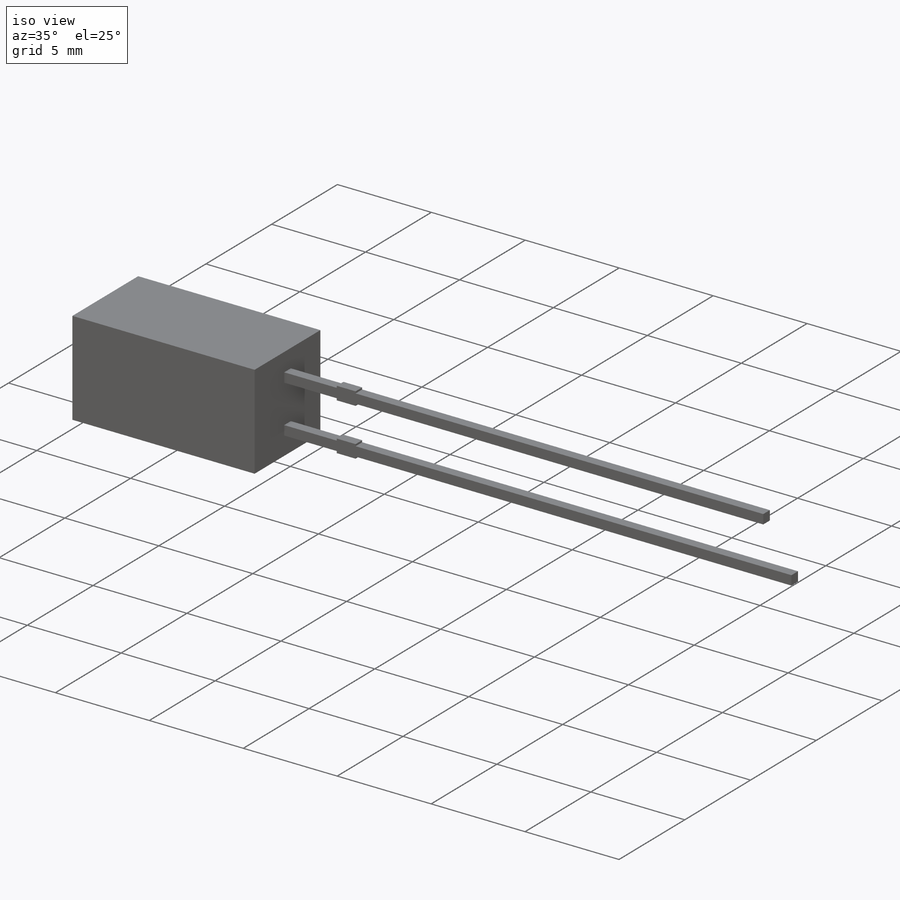
[diagram: iso view]
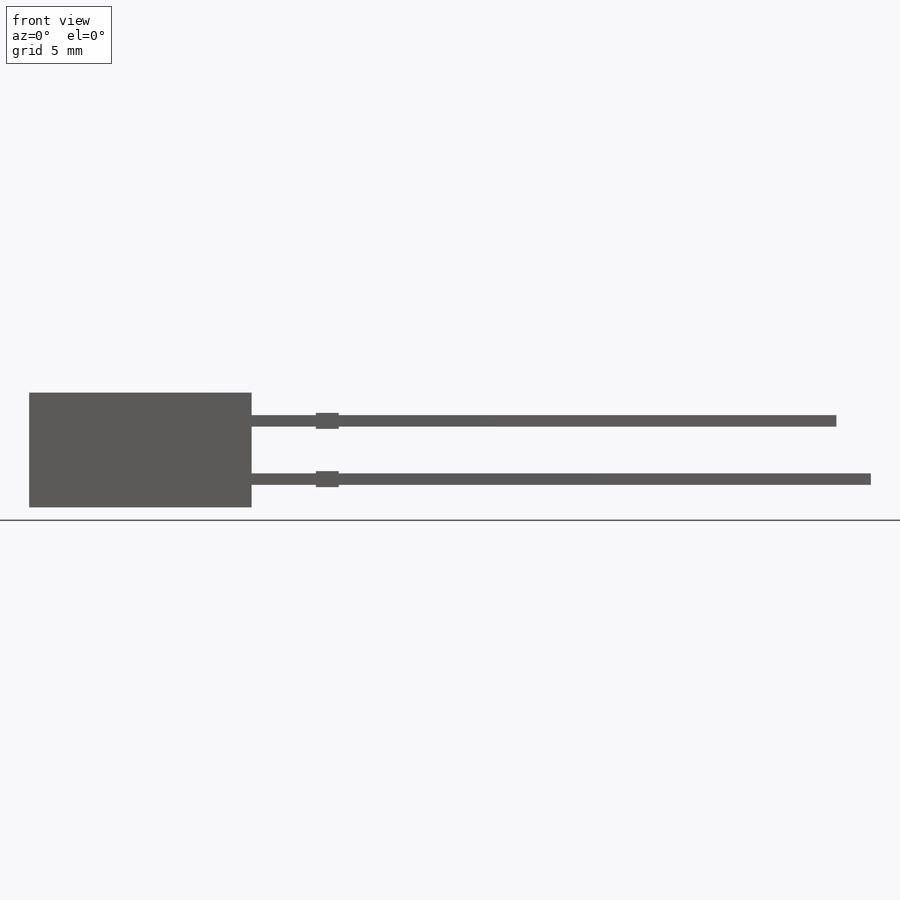
[diagram: front view]
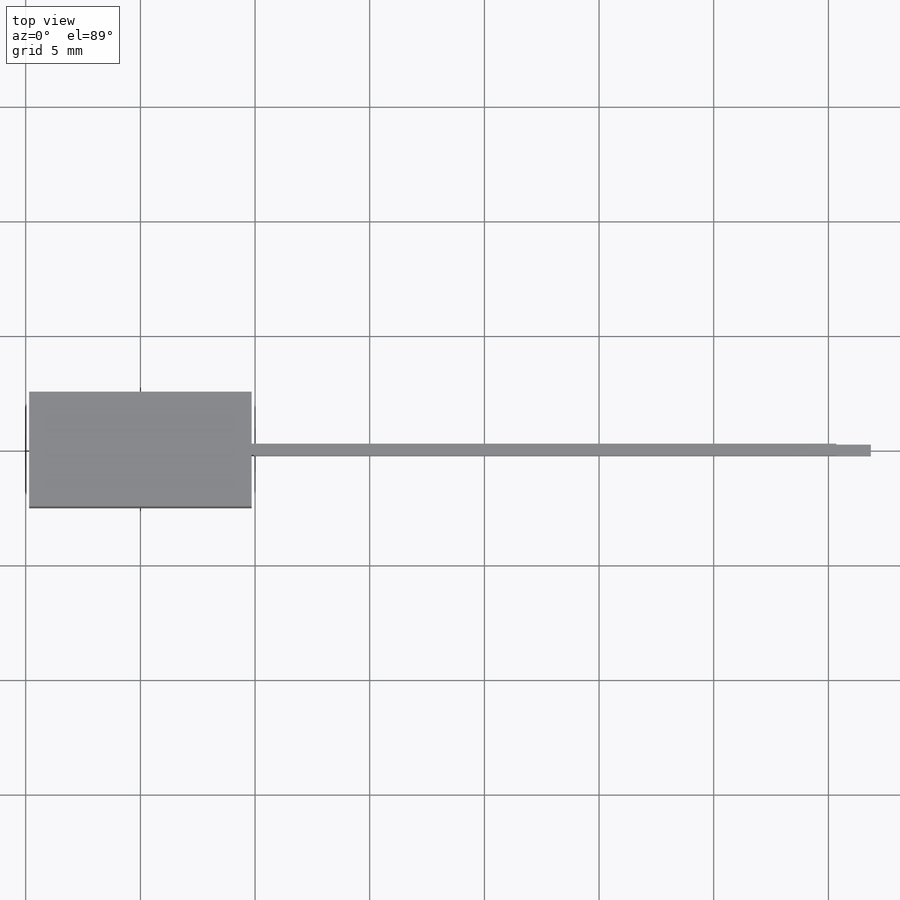
[diagram: top view]
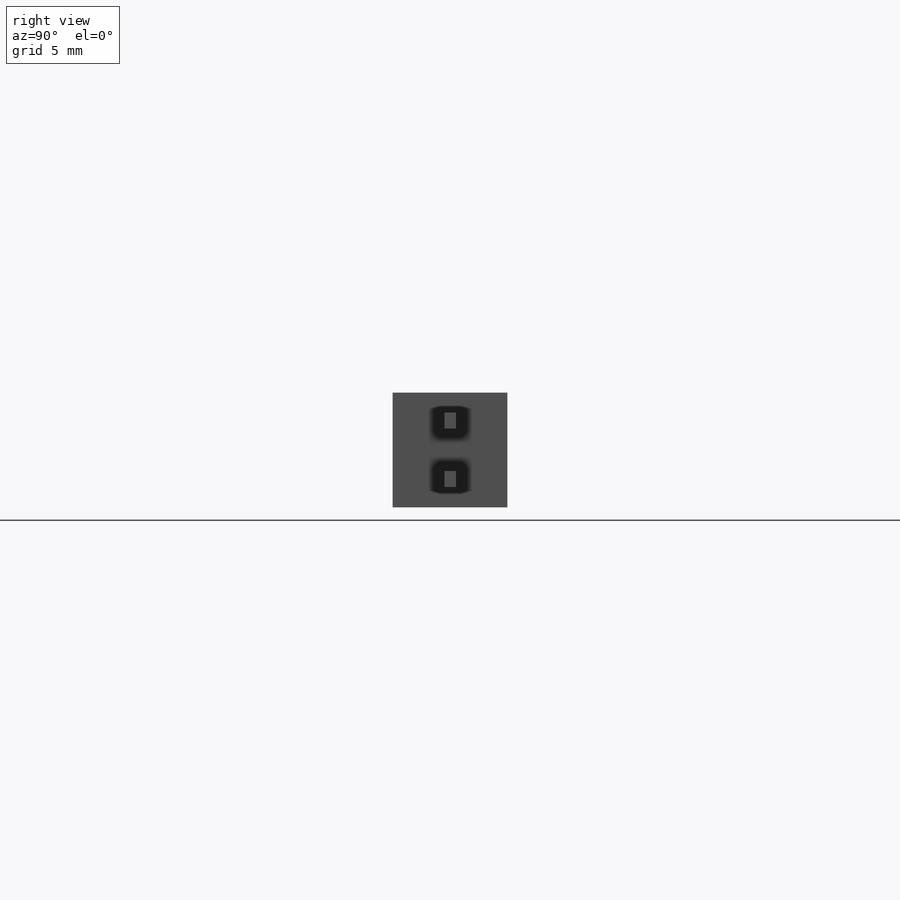
[diagram: right view]
SOLIDWORKS PART (.sldprt)
format: sldprt  version: not decoded by parser v0  size: 604,672 bytes
history: native  units: mm
features: sketch x4, extrude x3, material x1, cut_extrude x1 (+11 scaffold rows collapsed)
feature tree (20):
  scaffold x11  (default folders/planes/origin — collapsed)
  material  "Material <not specified>"
  sketch  "Sketch1"  dims[D1=5.0mm D2=9.7mm D3=2.54mm D4=27.0mm D5=1.5mm D6=0.5mm D7=0.7mm D8=1.0mm D9=12.5mm]
  extrude  "Extrude2"  Depth=0.5mm
  extrude  "Extrude3"  [1 undecoded]
  sketch  "Sketch1<5>"  dims[D1=2.5mm]
  extrude  "Extrude4"  [1 undecoded]
  sketch  "Sketch1<6>"  dims[D1=2.5mm]
  sketch  "Sketch2"  dims[D1=~5.123619mm]
  cut_extrude  "Cut-Extrude1"  Depth=0.01mm
decode coverage: 6 of 8 modeling features carry decoded parameters
note: ~ marks probable driven/reference dimensions
note: 2 parameter values undecoded
note: suppression state not decoded; provenance and decode notes live in map.json
